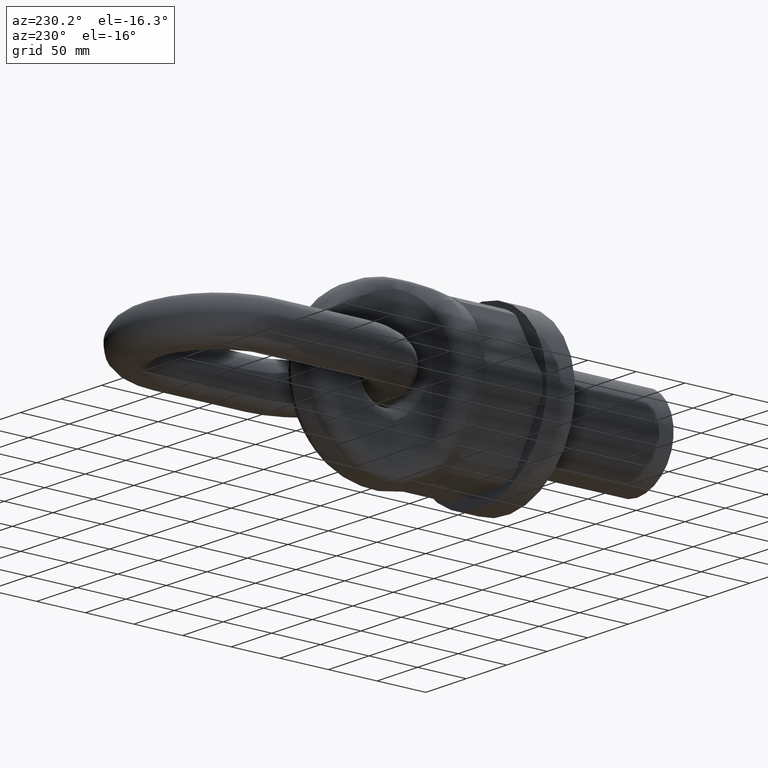
[diagram: clean part render]
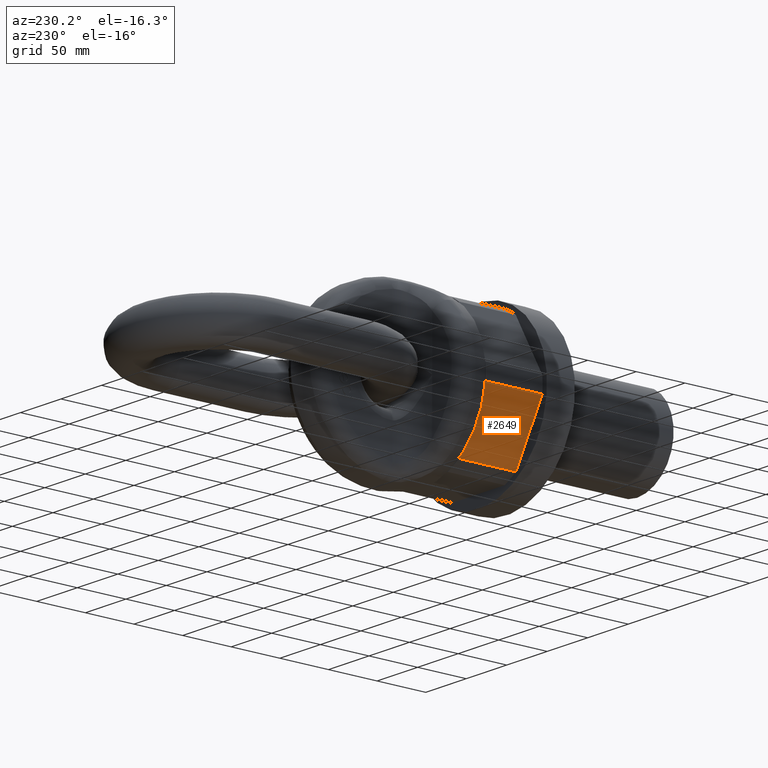
[diagram: same view with one face highlighted and labeled with its STEP entity id]
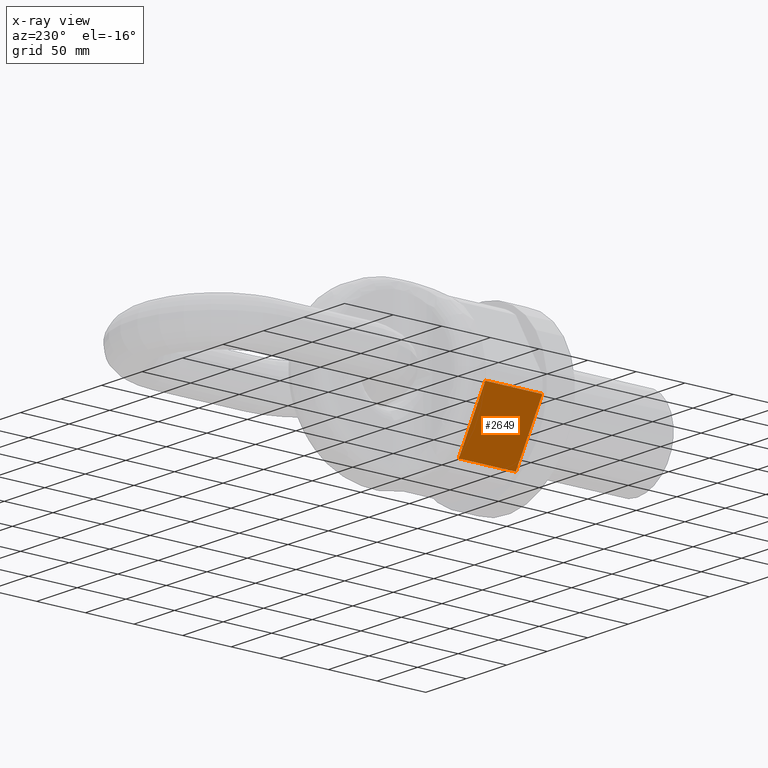
[diagram: x-ray of the same camera — body ghosted, the highlighted face saturated]
A machine part, auxiliary view. The second image highlights one B-rep face of the part: STEP entity #2649.
The next image is the same camera in x-ray: the body ghosted, the highlighted face saturated — about 0% of this face is hidden behind the body in this view.
In plain terms, the highlighted planar face has unit normal (-0.866, 0, -0.5).
Its self-contained STEP definition (entity closure, byte-faithful):
#1807=FACE_OUTER_BOUND('',#3072,.T.);
#2044=LINE('',#6590,#2300);
#2050=LINE('',#6611,#2306);
#2051=LINE('',#6613,#2307);
#2052=LINE('',#6615,#2308);
#2300=VECTOR('',#5828,1.);
#2306=VECTOR('',#5848,1.);
#2307=VECTOR('',#5849,1.);
#2308=VECTOR('',#5850,1.);
#2649=ADVANCED_FACE('',(#1807),#2891,.T.);
#2891=PLANE('',#5618);
#3072=EDGE_LOOP('',(#3372,#3373,#3374,#3375));
#3372=ORIENTED_EDGE('',*,*,#4960,.F.);
#3373=ORIENTED_EDGE('',*,*,#4950,.T.);
#3374=ORIENTED_EDGE('',*,*,#4961,.F.);
#3375=ORIENTED_EDGE('',*,*,#4962,.T.);
#4552=VERTEX_POINT('',#6589);
#4553=VERTEX_POINT('',#6591);
#4561=VERTEX_POINT('',#6612);
#4562=VERTEX_POINT('',#6614);
#4950=EDGE_CURVE('',#4553,#4552,#2044,.T.);
#4960=EDGE_CURVE('',#4553,#4561,#2050,.T.);
#4961=EDGE_CURVE('',#4562,#4552,#2051,.T.);
#4962=EDGE_CURVE('',#4562,#4561,#2052,.T.);
#5618=AXIS2_PLACEMENT_3D('',#6616,#5851,#5852);
#5828=DIRECTION('',(-0.5,-2.69631042425909E-17,0.866025403784439));
#5848=DIRECTION('',(-2.4492935982947E-17,1.,0.));
#5849=DIRECTION('',(2.4492935982947E-17,-1.,0.));
#5850=DIRECTION('',(0.5,0.,-0.866025403784439));
#5851=DIRECTION('',(-0.866025403784439,0.,-0.5));
#5852=DIRECTION('',(-0.5,0.,0.866025403784439));
#6589=CARTESIAN_POINT('',(-79.1328721283548,29.3333333333333,-7.93784492483828));
#6590=CARTESIAN_POINT('',(-41.5368417743719,29.3333333333333,-73.0560796608386));
#6591=CARTESIAN_POINT('',(-46.4408114203888,29.3333333333333,-64.5621550751616));
#6611=CARTESIAN_POINT('',(-46.4408114203888,4.00362275035415E-16,-64.5621550751616));
#6612=CARTESIAN_POINT('',(-46.4408114203888,88.,-64.5621550751616));
#6613=CARTESIAN_POINT('',(-79.1328721283548,-4.00362275035415E-16,-7.93784492483828));
#6614=CARTESIAN_POINT('',(-79.1328721283548,88.,-7.93784492483825));
#6615=CARTESIAN_POINT('',(-83.7157890324957,88.,0.));
#6616=CARTESIAN_POINT('',(-83.7157890324957,88.,0.));